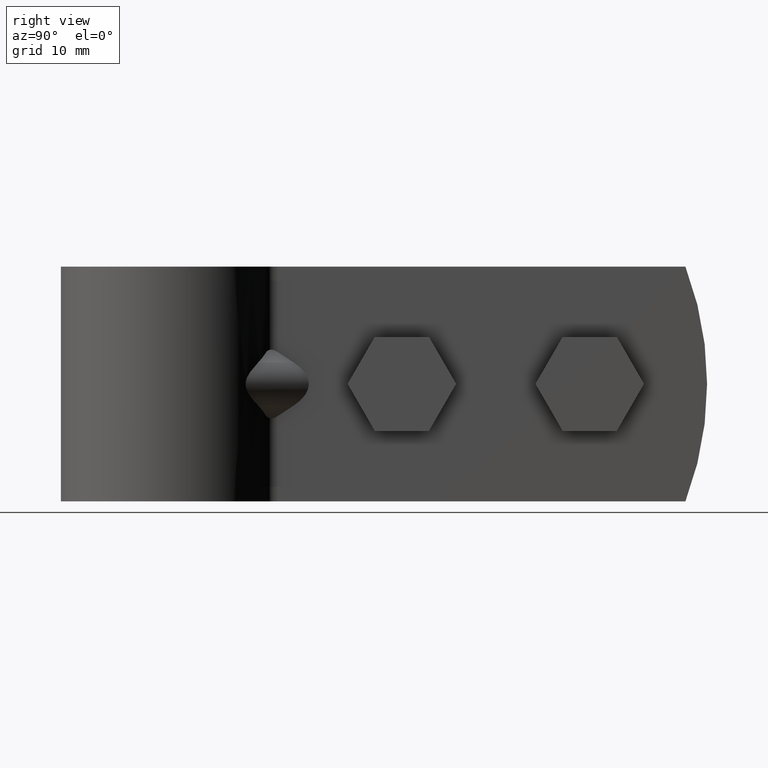
[diagram: clean part render]
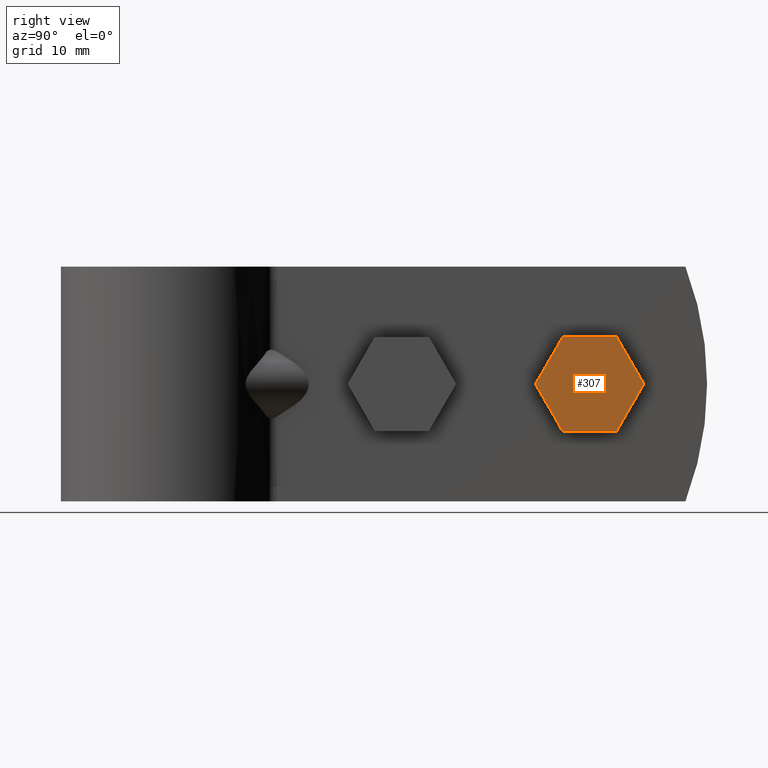
[diagram: same view with one face highlighted and labeled with its STEP entity id]
A machine part, right view. The second image highlights one B-rep face of the part: STEP entity #307.
In plain terms, the highlighted planar face has unit normal (-1, 0, 0).
Its self-contained STEP definition (entity closure, byte-faithful):
#307 = ADVANCED_FACE( '', ( #465 ), #466, .F. );
#465 = FACE_OUTER_BOUND( '', #697, .T. );
#466 = PLANE( '', #698 );
#697 = EDGE_LOOP( '', ( #1158, #1159, #1160, #1161, #1162, #1163 ) );
#698 = AXIS2_PLACEMENT_3D( '', #1164, #1165, #1166 );
#1158 = ORIENTED_EDGE( '', *, *, #1716, .T. );
#1159 = ORIENTED_EDGE( '', *, *, #1719, .T. );
#1160 = ORIENTED_EDGE( '', *, *, #1722, .T. );
#1161 = ORIENTED_EDGE( '', *, *, #1723, .T. );
#1162 = ORIENTED_EDGE( '', *, *, #1724, .T. );
#1163 = ORIENTED_EDGE( '', *, *, #1725, .T. );
#1164 = CARTESIAN_POINT( '', ( 9.10000000000000, 35.9976049885450, -5.00000000000000 ) );
#1165 = DIRECTION( '', ( -1.00000000000000, 6.06692130572647E-017, 0.000000000000000 ) );
#1166 = DIRECTION( '', ( 0.000000000000000, 0.000000000000000, 1.00000000000000 ) );
#1716 = EDGE_CURVE( '', #2026, #2024, #2027, .T. );
#1719 = EDGE_CURVE( '', #2024, #2029, #2031, .T. );
#1722 = EDGE_CURVE( '', #2029, #2036, #2037, .T. );
#1723 = EDGE_CURVE( '', #2036, #2038, #2039, .T. );
#1724 = EDGE_CURVE( '', #2038, #2040, #2041, .T. );
#1725 = EDGE_CURVE( '', #2040, #2026, #2042, .T. );
#2024 = VERTEX_POINT( '', #2558 );
#2026 = VERTEX_POINT( '', #2561 );
#2027 = LINE( '', #2562, #2563 );
#2029 = VERTEX_POINT( '', #2566 );
#2031 = LINE( '', #2569, #2570 );
#2036 = VERTEX_POINT( '', #2575 );
#2037 = LINE( '', #2576, #2577 );
#2038 = VERTEX_POINT( '', #2578 );
#2039 = LINE( '', #2579, #2580 );
#2040 = VERTEX_POINT( '', #2581 );
#2041 = LINE( '', #2582, #2583 );
#2042 = LINE( '', #2584, #2585 );
#2558 = CARTESIAN_POINT( '', ( 9.10000000000000, 47.5446103723375, -5.00000000000000 ) );
#2561 = CARTESIAN_POINT( '', ( 9.10000000000000, 41.7711076804412, -5.00000000000000 ) );
#2562 = CARTESIAN_POINT( '', ( 9.10000000000000, 41.7711076804412, -5.00000000000000 ) );
#2563 = VECTOR( '', #3160, 1000.00000000000 );
#2566 = CARTESIAN_POINT( '', ( 9.10000000000000, 50.4313617182856, -8.67361737988404E-016 ) );
#2569 = CARTESIAN_POINT( '', ( 9.10000000000000, 47.5446103723375, -5.00000000000000 ) );
#2570 = VECTOR( '', #3163, 1000.00000000000 );
#2575 = CARTESIAN_POINT( '', ( 9.10000000000000, 47.5446103723375, 5.00000000000000 ) );
#2576 = CARTESIAN_POINT( '', ( 9.10000000000000, 50.4313617182856, -1.22087514200374E-015 ) );
#2577 = VECTOR( '', #3170, 1000.00000000000 );
#2578 = CARTESIAN_POINT( '', ( 9.10000000000000, 41.7711076804412, 5.00000000000000 ) );
#2579 = CARTESIAN_POINT( '', ( 9.10000000000000, 47.5446103723375, 5.00000000000000 ) );
#2580 = VECTOR( '', #3171, 1000.00000000000 );
#2581 = CARTESIAN_POINT( '', ( 9.10000000000000, 38.8843563344931, -8.67361737988404E-016 ) );
#2582 = CARTESIAN_POINT( '', ( 9.10000000000000, 41.7711076804412, 5.00000000000000 ) );
#2583 = VECTOR( '', #3172, 1000.00000000000 );
#2584 = CARTESIAN_POINT( '', ( 9.10000000000000, 38.8843563344931, 1.93178474057610E-016 ) );
#2585 = VECTOR( '', #3173, 1000.00000000000 );
#3160 = DIRECTION( '', ( 6.06692130572647E-017, 1.00000000000000, -3.00462919747432E-016 ) );
#3163 = DIRECTION( '', ( 3.03346065286324E-017, 0.500000000000000, 0.866025403784439 ) );
#3170 = DIRECTION( '', ( -3.03346065286324E-017, -0.500000000000000, 0.866025403784439 ) );
#3171 = DIRECTION( '', ( -6.06692130572647E-017, -1.00000000000000, 0.000000000000000 ) );
#3172 = DIRECTION( '', ( -3.03346065286324E-017, -0.500000000000000, -0.866025403784439 ) );
#3173 = DIRECTION( '', ( 3.03346065286324E-017, 0.500000000000000, -0.866025403784439 ) );